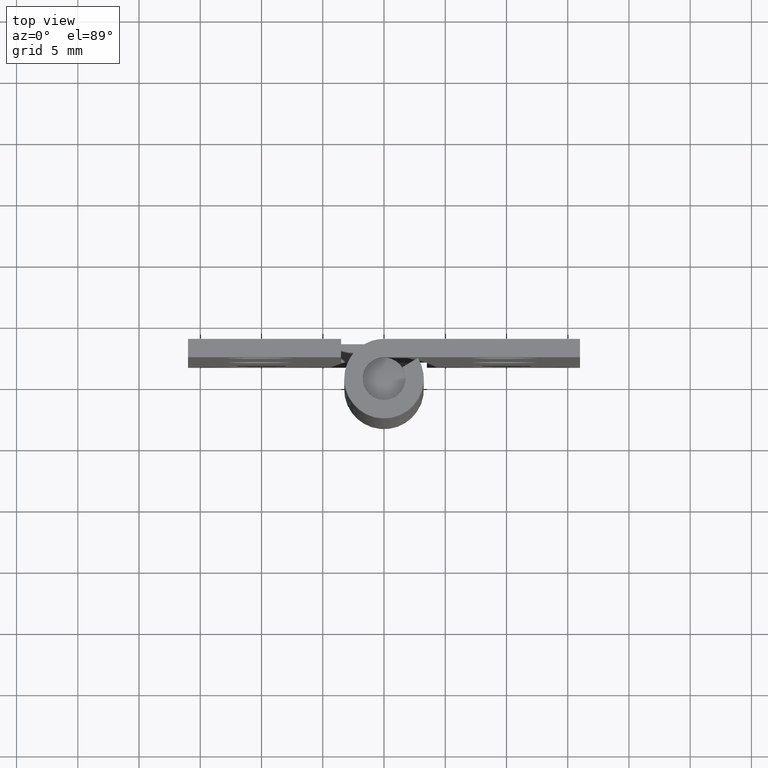
[diagram: clean part render]
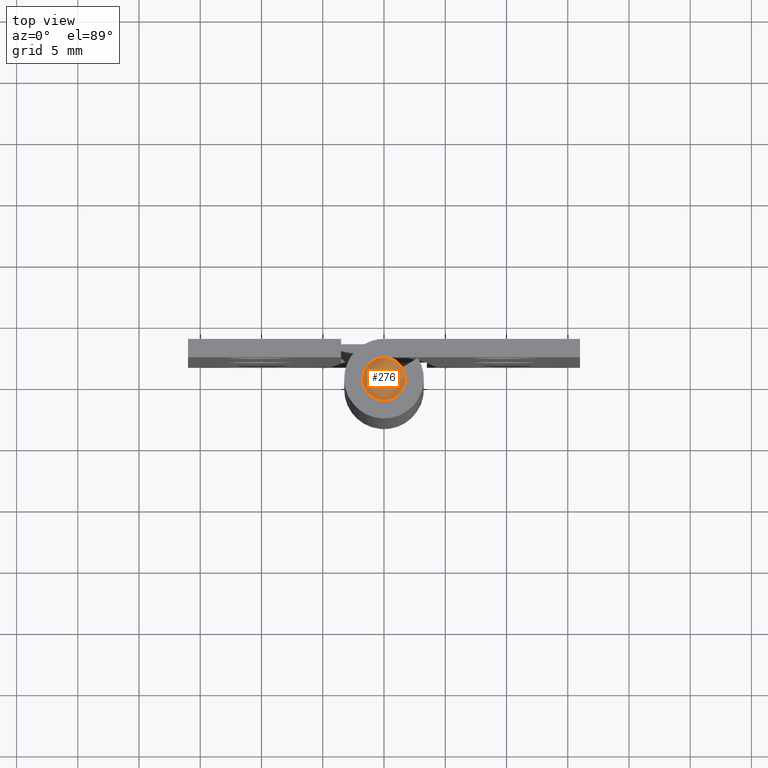
[diagram: same view with one face highlighted and labeled with its STEP entity id]
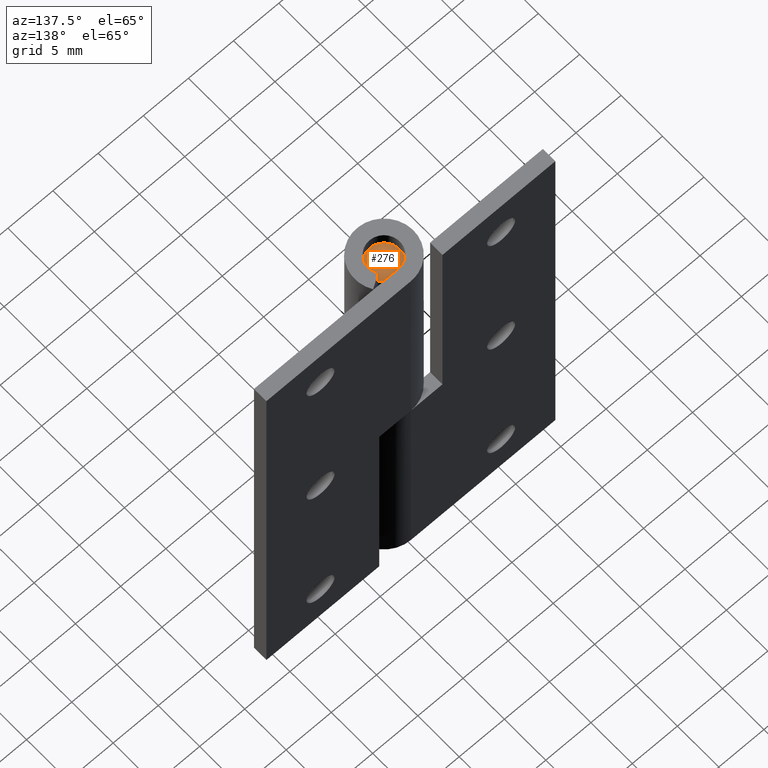
[diagram: same view with one face highlighted and labeled with its STEP entity id]
A machine part, top view. The second image highlights one B-rep face of the part: STEP entity #276.
A second angle (auxiliary view) of the same face is appended — the face is thin or edge-on in the first view.
In plain terms, the highlighted face is a freeform B-spline surface patch.
Its self-contained STEP definition (entity closure, byte-faithful):
#89=CARTESIAN_POINT('',(-0.206559910792633,1.737766671119382,48.500000000000000));
#90=VERTEX_POINT('',#89);
#96=CARTESIAN_POINT('',(1.750000000000000,0.0,48.500000000000000));
#97=VERTEX_POINT('',#96);
#98=CARTESIAN_POINT('',(-0.206559910792632,1.737766671119382,48.500000000000000));
#99=CARTESIAN_POINT('',(-0.103642209535663,1.750000000000000,48.500000000000007));
#100=CARTESIAN_POINT('',(0.0,1.750000000000000,48.500000000000000));
#101=CARTESIAN_POINT('',(1.750000000000000,1.750000000000000,48.500000000000014));
#102=CARTESIAN_POINT('',(1.750000000000000,0.0,48.500000000000000));
#110=(BOUNDED_CURVE()B_SPLINE_CURVE(2,(#98,#99,#100,#101,#102),.UNSPECIFIED.,.F.,.U.)B_SPLINE_CURVE_WITH_KNOTS((3,2,3),(0.229562473487771,0.250000000000000,0.500000000000000),.UNSPECIFIED.)CURVE()GEOMETRIC_REPRESENTATION_ITEM()RATIONAL_B_SPLINE_CURVE((0.956026754133252,0.976055948300991,1.0,0.707106781186547,1.0))REPRESENTATION_ITEM(''));
#111=EDGE_CURVE('',#90,#97,#110,.T.);
#113=CARTESIAN_POINT('',(0.106831698754701,-1.746736095731297,48.500000000000000));
#114=VERTEX_POINT('',#113);
#115=CARTESIAN_POINT('',(1.750000000000000,0.0,48.500000000000000));
#116=CARTESIAN_POINT('',(1.749999999999999,-1.646238681505061,48.500000000000000));
#117=CARTESIAN_POINT('',(0.106831698754701,-1.746736095731297,48.500000000000000));
#125=(BOUNDED_CURVE()B_SPLINE_CURVE(2,(#115,#116,#117),.UNSPECIFIED.,.F.,.U.)B_SPLINE_CURVE_WITH_KNOTS((3,3),(0.500000000000000,0.739333282833585),.UNSPECIFIED.)CURVE()GEOMETRIC_REPRESENTATION_ITEM()RATIONAL_B_SPLINE_CURVE((1.0,0.719603617686723,0.976072728763027))REPRESENTATION_ITEM(''));
#126=EDGE_CURVE('',#97,#114,#125,.T.);
#200=CARTESIAN_POINT('',(-1.750000000000000,0.0,48.500000000000000));
#201=VERTEX_POINT('',#200);
#202=CARTESIAN_POINT('',(0.106831698754701,-1.746736095731297,48.500000000000000));
#203=CARTESIAN_POINT('',(0.053465708507176,-1.750000000000000,48.500000000000007));
#204=CARTESIAN_POINT('',(0.0,-1.750000000000000,48.500000000000000));
#205=CARTESIAN_POINT('',(-1.750000000000000,-1.750000000000000,48.500000000000014));
#206=CARTESIAN_POINT('',(-1.750000000000000,0.0,48.500000000000000));
#214=(BOUNDED_CURVE()B_SPLINE_CURVE(2,(#202,#203,#204,#205,#206),.UNSPECIFIED.,.F.,.U.)B_SPLINE_CURVE_WITH_KNOTS((3,2,3),(0.739333282833585,0.750000000000000,1.0),.UNSPECIFIED.)CURVE()GEOMETRIC_REPRESENTATION_ITEM()RATIONAL_B_SPLINE_CURVE((0.976072728763027,0.987503163499824,1.0,0.707106781186547,1.0))REPRESENTATION_ITEM(''));
#215=EDGE_CURVE('',#114,#201,#214,.T.);
#217=CARTESIAN_POINT('',(-1.750000000000000,0.0,48.500000000000000));
#218=CARTESIAN_POINT('',(-1.750000000000000,1.554305420156737,48.500000000000007));
#219=CARTESIAN_POINT('',(-0.206559910792632,1.737766671119382,48.500000000000000));
#227=(BOUNDED_CURVE()B_SPLINE_CURVE(2,(#217,#218,#219),.UNSPECIFIED.,.F.,.U.)B_SPLINE_CURVE_WITH_KNOTS((3,3),(0.0,0.229562473487771),.UNSPECIFIED.)CURVE()GEOMETRIC_REPRESENTATION_ITEM()RATIONAL_B_SPLINE_CURVE((1.0,0.731050832885556,0.956026754133252))REPRESENTATION_ITEM(''));
#228=EDGE_CURVE('',#201,#90,#227,.T.);
#246=CARTESIAN_POINT('',(-1.738567743782420,-1.738529385438217,47.907309457193833));
#247=CARTESIAN_POINT('',(-0.947416382210445,-1.894790958372410,48.404561551395190));
#248=CARTESIAN_POINT('',(0.947416349111161,-1.894790958372410,48.404561551395190));
#249=CARTESIAN_POINT('',(1.738567693061393,-1.738529395456207,47.907309489072830));
#250=CARTESIAN_POINT('',(-1.894825249355601,-0.947391721736464,48.404537637649575));
#251=CARTESIAN_POINT('',(-1.040976773956609,-1.040953806692008,48.999999999999993));
#252=CARTESIAN_POINT('',(1.040976737588665,-1.040953806692008,48.999999999999993));
#253=CARTESIAN_POINT('',(1.894825195057249,-0.947391727686310,48.404537675516508));
#254=CARTESIAN_POINT('',(-1.894825249355601,0.947397034150827,48.404537637649575));
#255=CARTESIAN_POINT('',(-1.040976773956609,1.040959643747395,49.0));
#256=CARTESIAN_POINT('',(1.040976737588665,1.040959643747395,49.0));
#257=CARTESIAN_POINT('',(1.894825195057249,0.947397040100706,48.404537675516522));
#258=CARTESIAN_POINT('',(-1.738566135891767,1.738537526222096,47.907304340712898));
#259=CARTESIAN_POINT('',(-0.947415427250811,1.894799673355441,48.404555473826790));
#260=CARTESIAN_POINT('',(0.947415394151560,1.894799673355441,48.404555473826790));
#261=CARTESIAN_POINT('',(1.738566085170779,1.738537536240125,47.907304372591895));
#269=(BOUNDED_SURFACE()B_SPLINE_SURFACE(2,2,((#246,#250,#254,#258),(#247,#251,#255,#259),(#248,#252,#256,#260),(#249,#253,#257,#261)),.UNSPECIFIED.,.F.,.F.,.U.)B_SPLINE_SURFACE_WITH_KNOTS((3,1,3),(3,1,3),(0.0,1.983988777708743,3.967977486104126),(0.0,1.983945004594521,3.967901133983257),.UNSPECIFIED.)GEOMETRIC_REPRESENTATION_ITEM()RATIONAL_B_SPLINE_SURFACE(((1.197510741447285,1.098757549605832,1.098757549605832,1.197511848949777),(1.098753191841454,1.0,1.0,1.098754299343945),(1.098753191841454,1.0,1.0,1.098754299343945),(1.197510734546826,1.098757542705372,1.098757542705372,1.197511842049317)))REPRESENTATION_ITEM('')SURFACE());
#270=ORIENTED_EDGE('',*,*,#215,.F.);
#271=ORIENTED_EDGE('',*,*,#126,.F.);
#272=ORIENTED_EDGE('',*,*,#111,.F.);
#273=ORIENTED_EDGE('',*,*,#228,.F.);
#274=EDGE_LOOP('',(#270,#271,#272,#273));
#275=FACE_OUTER_BOUND('',#274,.T.);
#276=ADVANCED_FACE('',(#275),#269,.T.);